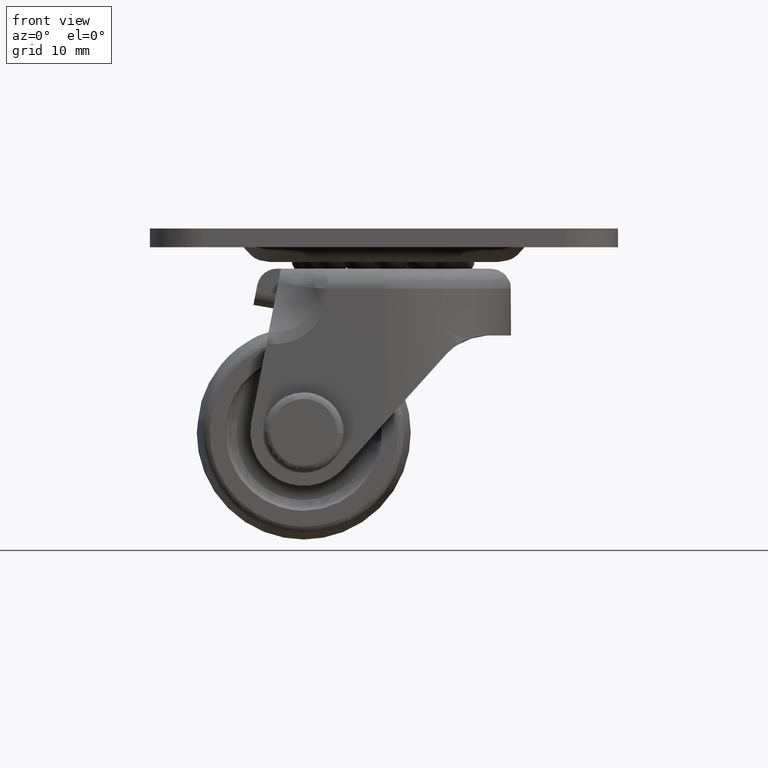
[diagram: clean part render]
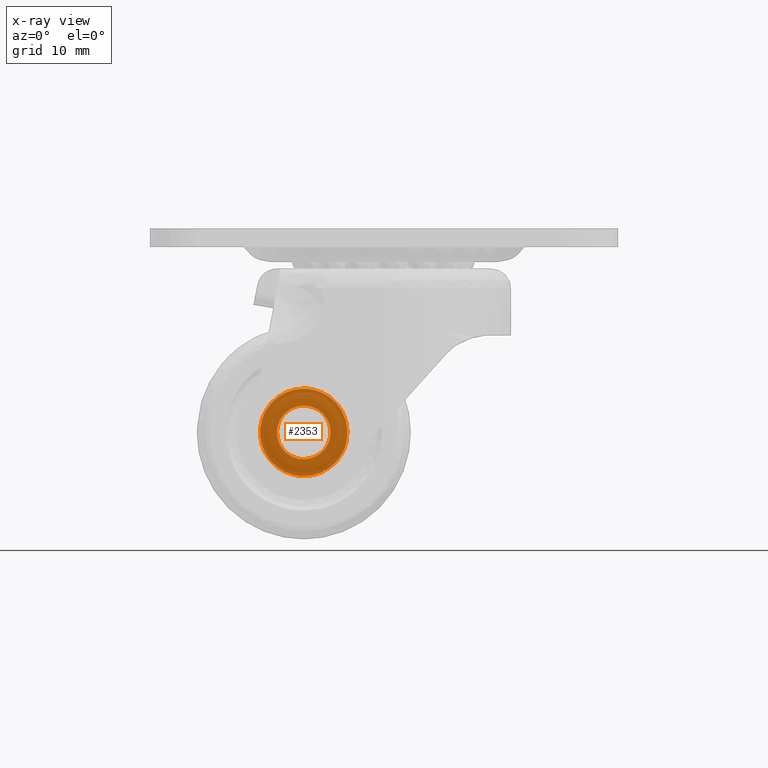
[diagram: x-ray — body ghosted, one internal face saturated and labeled with its STEP entity id]
A machine part, front view, then the same camera in x-ray: the body is ghosted and one INTERNAL B-rep face — a face not visible from any outside direction — is saturated and labeled: STEP entity #2353.
In plain terms, the highlighted face is a freeform B-spline surface patch.
Its self-contained STEP definition (entity closure, byte-faithful):
#532=CARTESIAN_POINT('',(-3.992537556994988,15.499997727166299,0.244190058116857));
#533=VERTEX_POINT('',#532);
#539=CARTESIAN_POINT('',(0.0,15.499997727166299,3.999994360254062));
#540=VERTEX_POINT('',#539);
#541=CARTESIAN_POINT('',(0.0,15.499997727166299,3.999994360254062));
#542=CARTESIAN_POINT('',(-3.762822724949907,15.499997727166294,3.999994360254062));
#543=CARTESIAN_POINT('',(-3.992537556994989,15.499997727166296,0.244190058116857));
#551=(BOUNDED_CURVE()B_SPLINE_CURVE(2,(#541,#542,#543),.UNSPECIFIED.,.F.,.U.)B_SPLINE_CURVE_WITH_KNOTS((3,3),(0.500000000000000,0.739332962234924),.UNSPECIFIED.)CURVE()GEOMETRIC_REPRESENTATION_ITEM()RATIONAL_B_SPLINE_CURVE((1.0,0.719603993291419,0.976072041658104))REPRESENTATION_ITEM(''));
#552=EDGE_CURVE('',#540,#533,#551,.T.);
#554=CARTESIAN_POINT('',(3.972036477161061,15.499997727166299,-0.472140745167139));
#555=VERTEX_POINT('',#554);
#556=CARTESIAN_POINT('',(3.972036477161061,15.499997727166301,-0.472140745167139));
#557=CARTESIAN_POINT('',(3.999998360254050,15.499997727166299,-0.236900381582306));
#558=CARTESIAN_POINT('',(3.999998360254050,15.499997727166299,-0.000003999999988));
#559=CARTESIAN_POINT('',(3.999998360254049,15.499997727166294,3.999994360254061));
#560=CARTESIAN_POINT('',(0.0,15.499997727166299,3.999994360254062));
#568=(BOUNDED_CURVE()B_SPLINE_CURVE(2,(#556,#557,#558,#559,#560),.UNSPECIFIED.,.F.,.U.)B_SPLINE_CURVE_WITH_KNOTS((3,2,3),(0.229562473508303,0.250000000000000,0.500000000000000),.UNSPECIFIED.)CURVE()GEOMETRIC_REPRESENTATION_ITEM()RATIONAL_B_SPLINE_CURVE((0.956026754173496,0.976055948325046,1.0,0.707106781186548,1.0))REPRESENTATION_ITEM(''));
#569=EDGE_CURVE('',#555,#540,#568,.T.);
#613=CARTESIAN_POINT('',(0.0,15.499997727166299,-4.000002360254038));
#614=VERTEX_POINT('',#613);
#615=CARTESIAN_POINT('',(0.0,15.499997727166299,-4.000002360254038));
#616=CARTESIAN_POINT('',(3.552696647269467,15.499997727166306,-4.000002360254038));
#617=CARTESIAN_POINT('',(3.972036477161062,15.499997727166296,-0.472140745167139));
#625=(BOUNDED_CURVE()B_SPLINE_CURVE(2,(#615,#616,#617),.UNSPECIFIED.,.F.,.U.)B_SPLINE_CURVE_WITH_KNOTS((3,3),(0.0,0.229562473508302),.UNSPECIFIED.)CURVE()GEOMETRIC_REPRESENTATION_ITEM()RATIONAL_B_SPLINE_CURVE((1.0,0.731050832861502,0.956026754173495))REPRESENTATION_ITEM(''));
#626=EDGE_CURVE('',#614,#555,#625,.T.);
#628=CARTESIAN_POINT('',(-3.992537556994988,15.499997727166303,0.244190058116857));
#629=CARTESIAN_POINT('',(-3.999998360254050,15.499997727166301,0.122207003177339));
#630=CARTESIAN_POINT('',(-3.999998360254050,15.499997727166299,-0.000003999999988));
#631=CARTESIAN_POINT('',(-3.999998360254049,15.499997727166294,-4.000002360254038));
#632=CARTESIAN_POINT('',(0.0,15.499997727166299,-4.000002360254038));
#640=(BOUNDED_CURVE()B_SPLINE_CURVE(2,(#628,#629,#630,#631,#632),.UNSPECIFIED.,.F.,.U.)B_SPLINE_CURVE_WITH_KNOTS((3,2,3),(0.739332962234923,0.750000000000000,1.0),.UNSPECIFIED.)CURVE()GEOMETRIC_REPRESENTATION_ITEM()RATIONAL_B_SPLINE_CURVE((0.976072041658102,0.987502787895127,1.0,0.707106781186548,1.0))REPRESENTATION_ITEM(''));
#641=EDGE_CURVE('',#533,#614,#640,.T.);
#1425=CARTESIAN_POINT('',(6.394359346194291,15.499997727166290,-1.404772158358697));
#1426=VERTEX_POINT('',#1425);
#1427=CARTESIAN_POINT('',(0.0,15.499997727166299,6.546842938478092));
#1428=VERTEX_POINT('',#1427);
#1429=CARTESIAN_POINT('',(6.394359346194291,15.499997727166283,-1.404772158358697));
#1430=CARTESIAN_POINT('',(6.546846938478081,15.499997727166306,-0.710664343958606));
#1431=CARTESIAN_POINT('',(6.546846938478081,15.499997727166299,-0.000003999999988));
#1432=CARTESIAN_POINT('',(6.546846938478081,15.499997727166294,6.546842938478091));
#1433=CARTESIAN_POINT('',(0.0,15.499997727166299,6.546842938478092));
#1441=(BOUNDED_CURVE()B_SPLINE_CURVE(2,(#1429,#1430,#1431,#1432,#1433),.UNSPECIFIED.,.F.,.U.)B_SPLINE_CURVE_WITH_KNOTS((3,2,3),(0.213273120198913,0.250000000000000,0.500000000000000),.UNSPECIFIED.)CURVE()GEOMETRIC_REPRESENTATION_ITEM()RATIONAL_B_SPLINE_CURVE((0.926585904650637,0.956971783832339,1.0,0.707106781186548,1.0))REPRESENTATION_ITEM(''));
#1442=EDGE_CURVE('',#1426,#1428,#1441,.T.);
#1444=CARTESIAN_POINT('',(-6.513792033077872,15.499997727166290,0.657048787534697));
#1445=VERTEX_POINT('',#1444);
#1446=CARTESIAN_POINT('',(0.0,15.499997727166299,6.546842938478092));
#1447=CARTESIAN_POINT('',(-5.919682528442123,15.499997727166301,6.546842938478092));
#1448=CARTESIAN_POINT('',(-6.513792033077872,15.499997727166297,0.657048787534697));
#1456=(BOUNDED_CURVE()B_SPLINE_CURVE(2,(#1446,#1447,#1448),.UNSPECIFIED.,.F.,.U.)B_SPLINE_CURVE_WITH_KNOTS((3,3),(0.500000000000000,0.732576558889595),.UNSPECIFIED.)CURVE()GEOMETRIC_REPRESENTATION_ITEM()RATIONAL_B_SPLINE_CURVE((1.0,0.727519612185081,0.962019632073331))REPRESENTATION_ITEM(''));
#1457=EDGE_CURVE('',#1428,#1445,#1456,.T.);
#1514=CARTESIAN_POINT('',(0.0,15.499997727166299,-6.546850938478069));
#1515=VERTEX_POINT('',#1514);
#1516=CARTESIAN_POINT('',(0.0,15.499997727166299,-6.546850938478069));
#1517=CARTESIAN_POINT('',(5.264702996741337,15.499997727166297,-6.546850938478070));
#1518=CARTESIAN_POINT('',(6.394359346194291,15.499997727166283,-1.404772158358697));
#1526=(BOUNDED_CURVE()B_SPLINE_CURVE(2,(#1516,#1517,#1518),.UNSPECIFIED.,.F.,.U.)B_SPLINE_CURVE_WITH_KNOTS((3,3),(0.0,0.213273120198913),.UNSPECIFIED.)CURVE()GEOMETRIC_REPRESENTATION_ITEM()RATIONAL_B_SPLINE_CURVE((1.0,0.750134997354209,0.926585904650637))REPRESENTATION_ITEM(''));
#1527=EDGE_CURVE('',#1515,#1426,#1526,.T.);
#1534=CARTESIAN_POINT('',(-6.513792033077872,15.499997727166292,0.657048787534697));
#1535=CARTESIAN_POINT('',(-6.546846938478080,15.499997727166296,0.329353854458328));
#1536=CARTESIAN_POINT('',(-6.546846938478081,15.499997727166299,-0.000003999999988));
#1537=CARTESIAN_POINT('',(-6.546846938478081,15.499997727166294,-6.546850938478069));
#1538=CARTESIAN_POINT('',(0.0,15.499997727166299,-6.546850938478069));
#1546=(BOUNDED_CURVE()B_SPLINE_CURVE(2,(#1534,#1535,#1536,#1537,#1538),.UNSPECIFIED.,.F.,.U.)B_SPLINE_CURVE_WITH_KNOTS((3,2,3),(0.732576558889595,0.750000000000000,1.0),.UNSPECIFIED.)CURVE()GEOMETRIC_REPRESENTATION_ITEM()RATIONAL_B_SPLINE_CURVE((0.962019632073331,0.979587169001467,1.0,0.707106781186548,1.0))REPRESENTATION_ITEM(''));
#1547=EDGE_CURVE('',#1445,#1515,#1546,.T.);
#2336=CARTESIAN_POINT('',(-7.200390666940877,15.499997727166299,-7.200881168082368));
#2337=CARTESIAN_POINT('',(-7.200390666940877,15.499997727166299,7.200873285149137));
#2338=CARTESIAN_POINT('',(7.199192839350520,15.499997727166299,-7.200881168082368));
#2339=CARTESIAN_POINT('',(7.199192839350520,15.499997727166299,7.200873285149137));
#2340=B_SPLINE_SURFACE_WITH_KNOTS('',1,1,((#2336,#2338),(#2337,#2339)),.UNSPECIFIED.,.F.,.F.,.U.,(2,2),(2,2),(0.0,14.401754453231501),(0.0,14.399583506291400),.UNSPECIFIED.);
#2341=ORIENTED_EDGE('',*,*,#1547,.F.);
#2342=ORIENTED_EDGE('',*,*,#1457,.F.);
#2343=ORIENTED_EDGE('',*,*,#1442,.F.);
#2344=ORIENTED_EDGE('',*,*,#1527,.F.);
#2345=EDGE_LOOP('',(#2341,#2342,#2343,#2344));
#2346=FACE_OUTER_BOUND('',#2345,.T.);
#2347=ORIENTED_EDGE('',*,*,#552,.T.);
#2348=ORIENTED_EDGE('',*,*,#641,.T.);
#2349=ORIENTED_EDGE('',*,*,#626,.T.);
#2350=ORIENTED_EDGE('',*,*,#569,.T.);
#2351=EDGE_LOOP('',(#2347,#2348,#2349,#2350));
#2352=FACE_BOUND('',#2351,.T.);
#2353=ADVANCED_FACE('',(#2346,#2352),#2340,.T.);